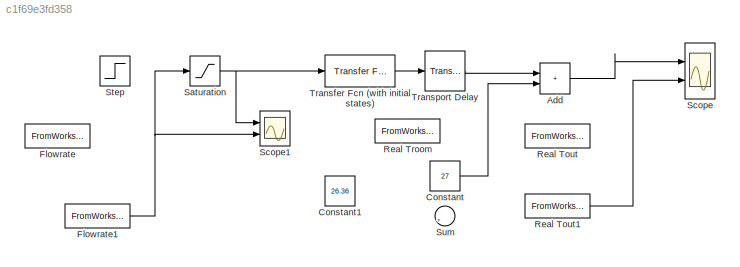
MODEL slx_c1f69e3fd358
KIND model
CONFIG AbsTol = auto
CONFIG EnableMultiTasking = off
CONFIG FixedStep = auto
CONFIG MaxStep = auto
CONFIG MinStep = auto
CONFIG RelTol = 1e-3
CONFIG SampleTimeConstraint = Unconstrained
CONFIG SolverName = VariableStepAuto
CONFIG StartTime = 0.0
CONFIG StopTime = 800
WORKSPACE source: mxarray member
WORKSPACE G_sup_tsp: Simulink.Signal (value not decoded)
BLOCK [Sum] Add
  IconShape = rectangular
  Ports = [2, 1]
BLOCK [Constant] Constant
  Value = 27
BLOCK [Constant] Constant1
  Value = 26.36
BLOCK [FromWorkspace] Flowrate
  SampleTime = 1
  VariableName = testData(:,[1,5])
BLOCK [FromWorkspace] Flowrate1
  SampleTime = 1
  VariableName = testData(:,[1,3])
BLOCK [FromWorkspace] Real Tout
  Commented = on
  VariableName = testData(:,[1,9])
BLOCK [FromWorkspace] Real Tout1
  VariableName = testData(:,[1,4])
BLOCK [FromWorkspace] Real Troom
  Commented = on
  VariableName = testData(:,[1,12])
BLOCK [Saturate] Saturation
  LowerLimit = 0
  UpperLimit = 0.25
BLOCK [Scope] Scope
  Floating = off
  NumInputPorts = 2
  Ports = [2]
  ScopeSpecificationString = Simulink.scopes.TimeScopeBlockCfg('CurrentConfiguration', extmgr.ConfigurationSet(extmgr.Configuration('Core','General UI',true),extmgr.Configuration('Core','Source UI',true),extmgr.Configuration('Sources','WiredSimulink',true,'DataLogging',true),extmgr.Configuration('Visuals','Time Domain',true,'SerializedDisplays',{struct('MinYLimReal','19.84898','MaxYLimReal','56.95919','YLabelReal','','MinYLim...<+1489ch>
BLOCK [Scope] Scope1
  Floating = off
  NumInputPorts = 2
  Ports = [2]
  ScopeSpecificationString = Simulink.scopes.TimeScopeBlockCfg('CurrentConfiguration', extmgr.ConfigurationSet(extmgr.Configuration('Core','General UI',true),extmgr.Configuration('Core','Source UI',true),extmgr.Configuration('Sources','WiredSimulink',true,'DataLogging',true,'DataLoggingVariableName','ScopeData1'),extmgr.Configuration('Visuals','Time Domain',true,'SerializedDisplays',{struct('MinYLimReal','-0.08625','MaxYLimRe...<+1523ch>
BLOCK [Step] Step
  After = 0.75
  SampleTime = 0
  Time = 35
BLOCK [Sum] Sum
  Inputs = |+-
  Ports = [2, 1]
BLOCK [Reference] Transfer Fcn (with initial states)  REF=simulink_extras/Additional
Linear/Transfer Fcn
(with initial states)
  Ports = [1, 1]
  SourceBlock = simulink_extras/Additional\nLinear/Transfer Fcn\n(with initial states)
  SourceProductBaseCode = SL
  SourceType = Transfer Function with Initial States
BLOCK [TransportDelay] Transport Delay
  DelayTime = 0
  Ports = [1, 1]
LINE Add:1 -> Scope:1
LINE Constant:1 -> Add:2
NET Flowrate1:1 -> Saturation:1, Scope1:2
LINE Real Tout1:1 -> Scope:2
NET Saturation:1 -> Scope1:1, Transfer Fcn (with initial states):1
LINE Transfer Fcn (with initial states):1 -> Transport Delay:1
LINE Transport Delay:1 -> Add:1
note: NET lines group one-source signal fan-out (src -> all destinations, sorted); 1:1 wires keep LINE
